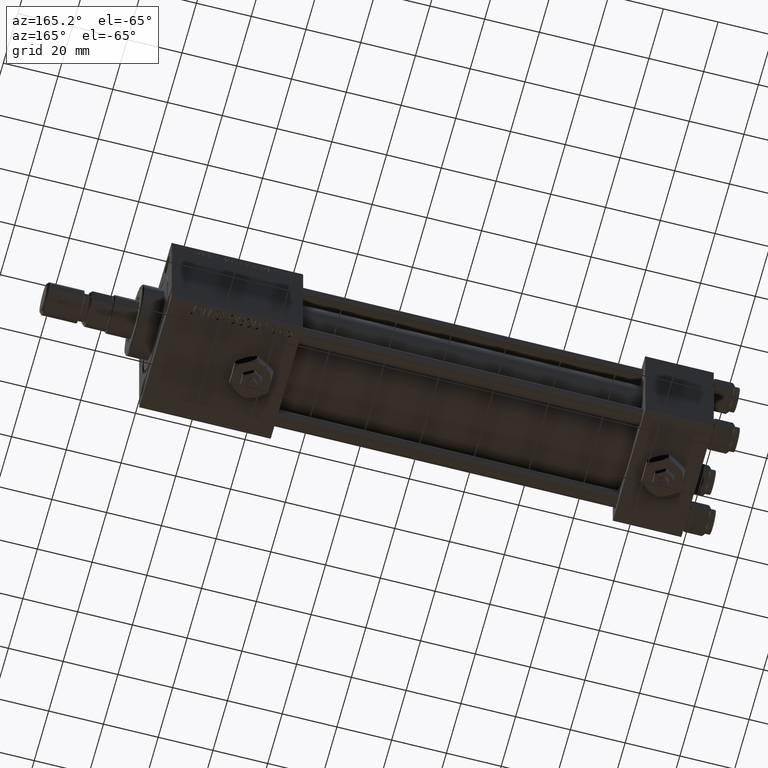
[diagram: clean part render]
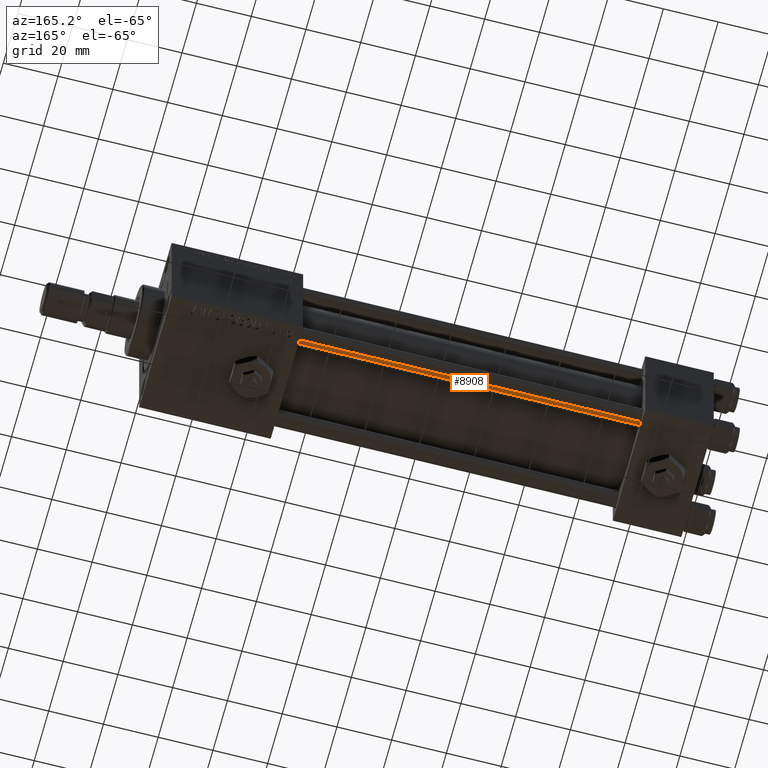
[diagram: same view with one face highlighted and labeled with its STEP entity id]
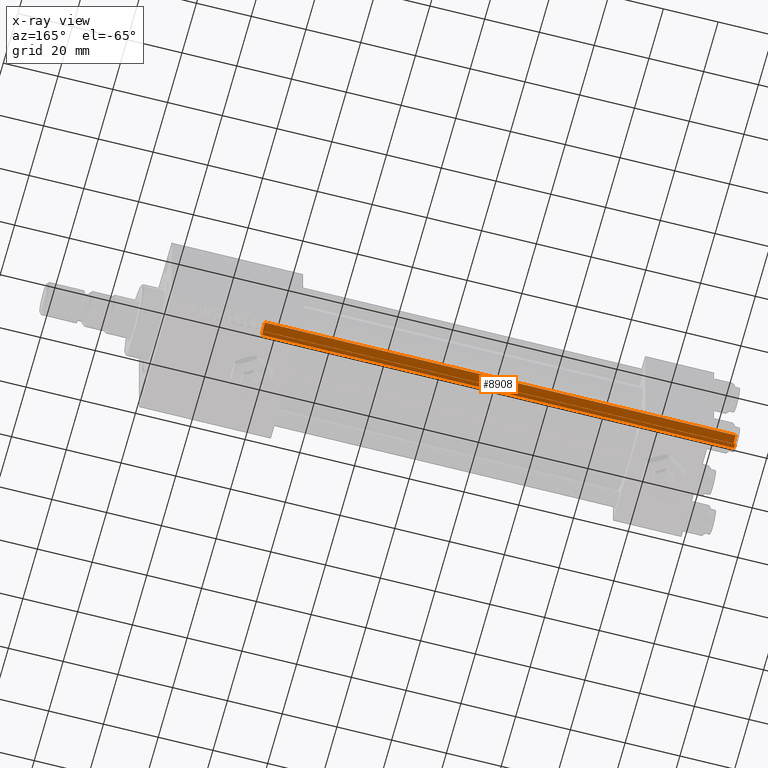
[diagram: x-ray of the same camera — body ghosted, the highlighted face saturated]
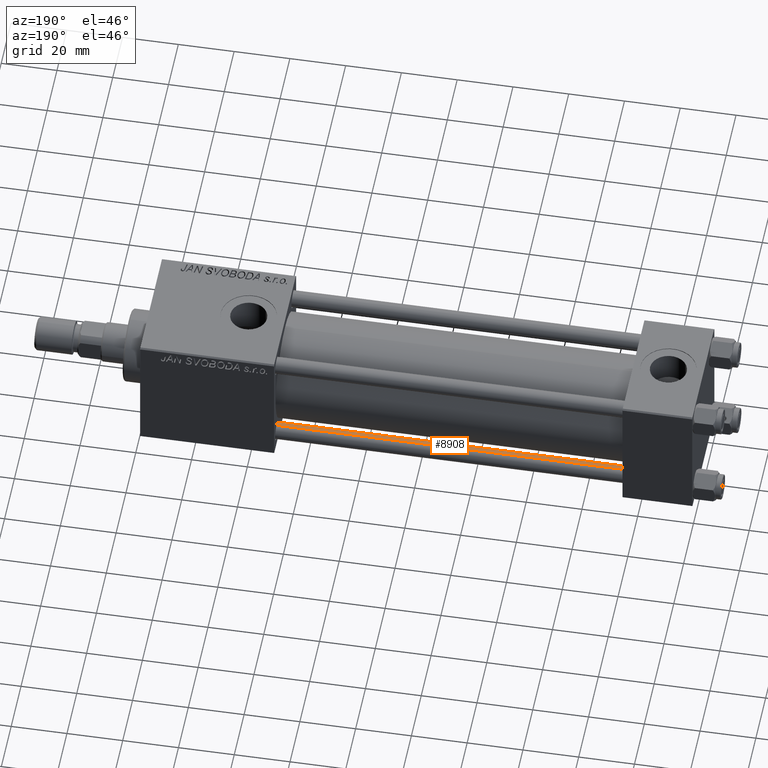
[diagram: same view with one face highlighted and labeled with its STEP entity id]
A machine part, auxiliary view. The second image highlights one B-rep face of the part: STEP entity #8908.
The next image is the same camera in x-ray: the body ghosted, the highlighted face saturated — about 0% of this face is hidden behind the body in this view.
A second angle (auxiliary view) of the same face is appended — the face is thin or edge-on in the first view.
In plain terms, the highlighted cylindrical surface (edge-blend (fillet) strip) has radius 3 mm, axis along (1, -0, 0).
Its self-contained STEP definition (entity closure, byte-faithful):
#971 = CARTESIAN_POINT ( 'NONE',  ( -3.000000000000000444, 0.000000000000000000, 0.5000000000000004441 ) ) ;
#1149 = CIRCLE ( 'NONE', #25845, 3.000000000000000444 ) ;
#1585 = DIRECTION ( 'NONE',  ( 1.000000000000000000, 0.000000000000000000, 0.000000000000000000 ) ) ;
#4844 = CYLINDRICAL_SURFACE ( 'NONE', #52693, 3.000000000000000444 ) ;
#4904 = CARTESIAN_POINT ( 'NONE',  ( 3.000000000000000444, 3.673940397442060361E-16, 0.5000000000000004441 ) ) ;
#8908 = ADVANCED_FACE ( 'NONE', ( #33363 ), #4844, .T. ) ;
#11187 = DIRECTION ( 'NONE',  ( -0.000000000000000000, -0.000000000000000000, -1.000000000000000000 ) ) ;
#12585 = CARTESIAN_POINT ( 'NONE',  ( 0.000000000000000000, 0.000000000000000000, 173.0000000000000000 ) ) ;
#14692 = ORIENTED_EDGE ( 'NONE', *, *, #42837, .T. ) ;
#16842 = CARTESIAN_POINT ( 'NONE',  ( -3.000000000000000444, 0.000000000000000000, 173.0000000000000000 ) ) ;
#20859 = DIRECTION ( 'NONE',  ( -0.000000000000000000, -0.000000000000000000, -1.000000000000000000 ) ) ;
#20997 = ORIENTED_EDGE ( 'NONE', *, *, #36912, .T. ) ;
#22660 = CIRCLE ( 'NONE', #51575, 3.000000000000000444 ) ;
#24337 = EDGE_CURVE ( 'NONE', #41374, #45698, #38854, .T. ) ;
#25672 = DIRECTION ( 'NONE',  ( 1.000000000000000000, 0.000000000000000000, 0.000000000000000000 ) ) ;
#25845 = AXIS2_PLACEMENT_3D ( 'NONE', #50141, #37878, #25672 ) ;
#26336 = EDGE_CURVE ( 'NONE', #44246, #28629, #41068, .T. ) ;
#28629 = VERTEX_POINT ( 'NONE', #971 ) ;
#29350 = DIRECTION ( 'NONE',  ( -1.000000000000000000, 0.000000000000000000, 0.000000000000000000 ) ) ;
#29843 = DIRECTION ( 'NONE',  ( -0.000000000000000000, -0.000000000000000000, 1.000000000000000000 ) ) ;
#32825 = DIRECTION ( 'NONE',  ( -0.000000000000000000, -0.000000000000000000, -1.000000000000000000 ) ) ;
#33363 = FACE_OUTER_BOUND ( 'NONE', #46402, .T. ) ;
#36912 = EDGE_CURVE ( 'NONE', #41374, #44246, #1149, .T. ) ;
#37878 = DIRECTION ( 'NONE',  ( 0.000000000000000000, 0.000000000000000000, -1.000000000000000000 ) ) ;
#38854 = LINE ( 'NONE', #51379, #45042 ) ;
#39338 = CARTESIAN_POINT ( 'NONE',  ( -3.000000000000000444, 0.000000000000000000, 172.5000000000000000 ) ) ;
#39904 = ORIENTED_EDGE ( 'NONE', *, *, #24337, .F. ) ;
#41068 = LINE ( 'NONE', #16842, #51078 ) ;
#41374 = VERTEX_POINT ( 'NONE', #44880 ) ;
#42837 = EDGE_CURVE ( 'NONE', #28629, #45698, #22660, .T. ) ;
#43579 = CARTESIAN_POINT ( 'NONE',  ( 0.000000000000000000, 0.000000000000000000, 0.5000000000000004441 ) ) ;
#44246 = VERTEX_POINT ( 'NONE', #39338 ) ;
#44880 = CARTESIAN_POINT ( 'NONE',  ( 3.000000000000000444, 3.673940397442060361E-16, 172.5000000000000000 ) ) ;
#45042 = VECTOR ( 'NONE', #11187, 1000.000000000000000 ) ;
#45698 = VERTEX_POINT ( 'NONE', #4904 ) ;
#46402 = EDGE_LOOP ( 'NONE', ( #39904, #20997, #47456, #14692 ) ) ;
#47456 = ORIENTED_EDGE ( 'NONE', *, *, #26336, .T. ) ;
#50141 = CARTESIAN_POINT ( 'NONE',  ( 0.000000000000000000, 0.000000000000000000, 172.5000000000000000 ) ) ;
#51078 = VECTOR ( 'NONE', #20859, 1000.000000000000000 ) ;
#51379 = CARTESIAN_POINT ( 'NONE',  ( 3.000000000000000444, 3.673940397442060361E-16, 173.0000000000000000 ) ) ;
#51575 = AXIS2_PLACEMENT_3D ( 'NONE', #43579, #29843, #1585 ) ;
#52693 = AXIS2_PLACEMENT_3D ( 'NONE', #12585, #32825, #29350 ) ;